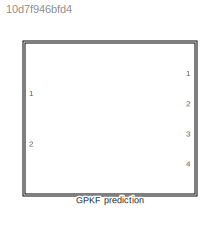
MODEL slx_10d7f946bfd4
KIND library
CONFIG AbsTol = auto
CONFIG EnableMultiTasking = off
CONFIG FixedStep = auto
CONFIG MaxStep = auto
CONFIG MinStep = auto
CONFIG RelTol = 1e-3
CONFIG SampleTimeConstraint = Unconstrained
CONFIG Solver = VariableStepAuto
CONFIG SolverName = VariableStepAuto
CONFIG StartTime = 0.0
CONFIG StopTime = 10.0
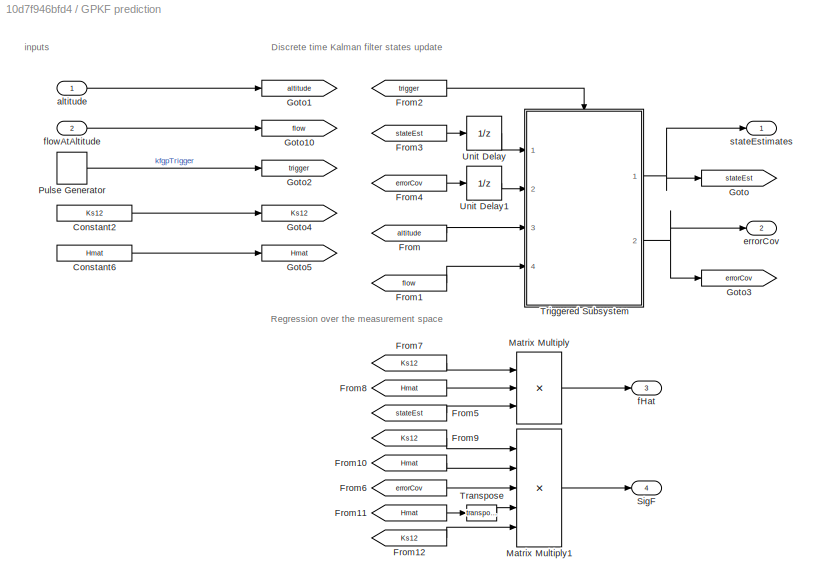
BLOCK [SubSystem] GPKF prediction
  Ports = [2, 4]
  RequestExecContextInheritance = off
BLOCK [Constant] GPKF prediction/Constant2
  Value = Ks12
  VectorParams1D = off
BLOCK [Constant] GPKF prediction/Constant6
  Value = Hmat
  VectorParams1D = off
BLOCK [From] GPKF prediction/From
  GotoTag = altitude
BLOCK [From] GPKF prediction/From1
  GotoTag = flow
BLOCK [From] GPKF prediction/From10
  GotoTag = Hmat
BLOCK [From] GPKF prediction/From11
  GotoTag = Hmat
BLOCK [From] GPKF prediction/From12
  GotoTag = Ks12
BLOCK [From] GPKF prediction/From2
  GotoTag = trigger
BLOCK [From] GPKF prediction/From3
  GotoTag = stateEst
BLOCK [From] GPKF prediction/From4
  GotoTag = errorCov
BLOCK [From] GPKF prediction/From5
  GotoTag = stateEst
BLOCK [From] GPKF prediction/From6
  GotoTag = errorCov
BLOCK [From] GPKF prediction/From7
  GotoTag = Ks12
BLOCK [From] GPKF prediction/From8
  GotoTag = Hmat
BLOCK [From] GPKF prediction/From9
  GotoTag = Ks12
BLOCK [Goto] GPKF prediction/Goto
  GotoTag = stateEst
BLOCK [Goto] GPKF prediction/Goto1
  GotoTag = altitude
BLOCK [Goto] GPKF prediction/Goto10
  GotoTag = flow
BLOCK [Goto] GPKF prediction/Goto2
  GotoTag = trigger
BLOCK [Goto] GPKF prediction/Goto3
  GotoTag = errorCov
BLOCK [Goto] GPKF prediction/Goto4
  GotoTag = Ks12
BLOCK [Goto] GPKF prediction/Goto5
  GotoTag = Hmat
BLOCK [Product] GPKF prediction/Matrix Multiply
  Inputs = 3
  Multiplication = Matrix(*)
  Ports = [3, 1]
BLOCK [Product] GPKF prediction/Matrix Multiply1
  Inputs = 5
  Multiplication = Matrix(*)
  Ports = [5, 1]
BLOCK [DiscretePulseGenerator] GPKF prediction/Pulse Generator
  Period = gpkfTimeStep
  Ports = [0, 1]
  PulseType = Time based
BLOCK [Outport] GPKF prediction/SigF
  Port = 4
BLOCK [Math] GPKF prediction/Transpose
  Operator = transpose
  Ports = [1, 1]
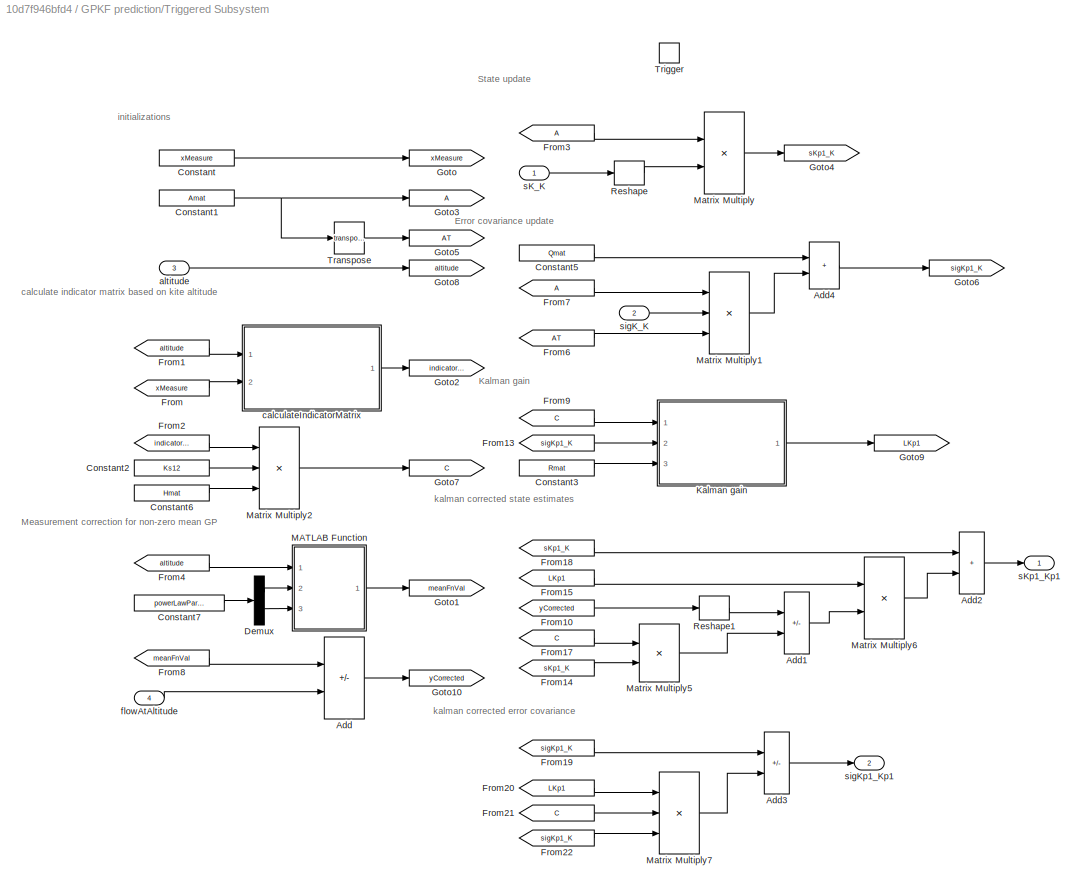
BLOCK [SubSystem] GPKF prediction/Triggered Subsystem
  Ports = [4, 2, 0, 1]
  RequestExecContextInheritance = off
  TreatAsAtomicUnit = on
BLOCK [Sum] GPKF prediction/Triggered Subsystem/Add
  IconShape = rectangular
  Inputs = +-
  Ports = [2, 1]
BLOCK [Sum] GPKF prediction/Triggered Subsystem/Add1
  IconShape = rectangular
  Inputs = +-
  Ports = [2, 1]
BLOCK [Sum] GPKF prediction/Triggered Subsystem/Add2
  IconShape = rectangular
  Ports = [2, 1]
BLOCK [Sum] GPKF prediction/Triggered Subsystem/Add3
  IconShape = rectangular
  Inputs = +-
  Ports = [2, 1]
BLOCK [Sum] GPKF prediction/Triggered Subsystem/Add4
  IconShape = rectangular
  Ports = [2, 1]
BLOCK [Constant] GPKF prediction/Triggered Subsystem/Constant
  Value = xMeasure
  VectorParams1D = off
BLOCK [Constant] GPKF prediction/Triggered Subsystem/Constant1
  Value = Amat
  VectorParams1D = off
BLOCK [Constant] GPKF prediction/Triggered Subsystem/Constant2
  Value = Ks12
  VectorParams1D = off
BLOCK [Constant] GPKF prediction/Triggered Subsystem/Constant3
  Value = Rmat
  VectorParams1D = off
BLOCK [Constant] GPKF prediction/Triggered Subsystem/Constant5
  Value = Qmat
  VectorParams1D = off
BLOCK [Constant] GPKF prediction/Triggered Subsystem/Constant6
  Value = Hmat
  VectorParams1D = off
BLOCK [Constant] GPKF prediction/Triggered Subsystem/Constant7
  Value = powerLawParams
BLOCK [Demux] GPKF prediction/Triggered Subsystem/Demux
  Outputs = 2
  Ports = [1, 2]
BLOCK [From] GPKF prediction/Triggered Subsystem/From
  GotoTag = xMeasure
BLOCK [From] GPKF prediction/Triggered Subsystem/From1
  GotoTag = altitude
BLOCK [From] GPKF prediction/Triggered Subsystem/From10
  GotoTag = yCorrected
BLOCK [From] GPKF prediction/Triggered Subsystem/From13
  GotoTag = sigKp1_K
BLOCK [From] GPKF prediction/Triggered Subsystem/From14
  GotoTag = sKp1_K
BLOCK [From] GPKF prediction/Triggered Subsystem/From15
  GotoTag = LKp1
BLOCK [From] GPKF prediction/Triggered Subsystem/From17
  GotoTag = C
BLOCK [From] GPKF prediction/Triggered Subsystem/From18
  GotoTag = sKp1_K
BLOCK [From] GPKF prediction/Triggered Subsystem/From19
  GotoTag = sigKp1_K
BLOCK [From] GPKF prediction/Triggered Subsystem/From2
  GotoTag = indicatorMat
BLOCK [From] GPKF prediction/Triggered Subsystem/From20
  GotoTag = LKp1
BLOCK [From] GPKF prediction/Triggered Subsystem/From21
  GotoTag = C
BLOCK [From] GPKF prediction/Triggered Subsystem/From22
  GotoTag = sigKp1_K
BLOCK [From] GPKF prediction/Triggered Subsystem/From3
BLOCK [From] GPKF prediction/Triggered Subsystem/From4
  GotoTag = altitude
BLOCK [From] GPKF prediction/Triggered Subsystem/From6
  GotoTag = AT
BLOCK [From] GPKF prediction/Triggered Subsystem/From7
BLOCK [From] GPKF prediction/Triggered Subsystem/From8
  GotoTag = meanFnVal
BLOCK [From] GPKF prediction/Triggered Subsystem/From9
  GotoTag = C
BLOCK [Goto] GPKF prediction/Triggered Subsystem/Goto
  GotoTag = xMeasure
BLOCK [Goto] GPKF prediction/Triggered Subsystem/Goto1
  GotoTag = meanFnVal
BLOCK [Goto] GPKF prediction/Triggered Subsystem/Goto10
  GotoTag = yCorrected
BLOCK [Goto] GPKF prediction/Triggered Subsystem/Goto2
  GotoTag = indicatorMat
BLOCK [Goto] GPKF prediction/Triggered Subsystem/Goto3
BLOCK [Goto] GPKF prediction/Triggered Subsystem/Goto4
  GotoTag = sKp1_K
BLOCK [Goto] GPKF prediction/Triggered Subsystem/Goto5
  GotoTag = AT
BLOCK [Goto] GPKF prediction/Triggered Subsystem/Goto6
  GotoTag = sigKp1_K
BLOCK [Goto] GPKF prediction/Triggered Subsystem/Goto7
  GotoTag = C
BLOCK [Goto] GPKF prediction/Triggered Subsystem/Goto8
  GotoTag = altitude
BLOCK [Goto] GPKF prediction/Triggered Subsystem/Goto9
  GotoTag = LKp1
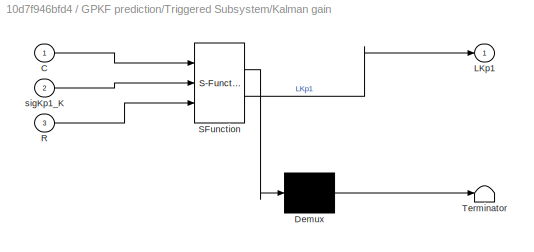
BLOCK [SubSystem] GPKF prediction/Triggered Subsystem/Kalman gain
  ErrorFcn = Stateflow.Translate.translate
  PermitHierarchicalResolution = ExplicitOnly
  Ports = [3, 1]
  RequestExecContextInheritance = off
  SFBlockType = MATLAB Function
  TreatAsAtomicUnit = on
BLOCK [Demux] GPKF prediction/Triggered Subsystem/Kalman gain/ Demux 
  Outputs = 1
  Ports = [1, 1]
BLOCK [S-Function] GPKF prediction/Triggered Subsystem/Kalman gain/ SFunction 
  EnableBusSupport = off
  FunctionName = sf_sfun
  PortCounts = [3 2]
  Ports = [3, 2]
  SFcnIsStateOwnerBlock = off
  SFunctionDeploymentMode = off
  Tag = Stateflow S-Function 1
BLOCK [Terminator] GPKF prediction/Triggered Subsystem/Kalman gain/ Terminator 
BLOCK [Inport] GPKF prediction/Triggered Subsystem/Kalman gain/C
BLOCK [Outport] GPKF prediction/Triggered Subsystem/Kalman gain/LKp1
BLOCK [Inport] GPKF prediction/Triggered Subsystem/Kalman gain/R
  Port = 3
BLOCK [Inport] GPKF prediction/Triggered Subsystem/Kalman gain/sigKp1_K
  Port = 2
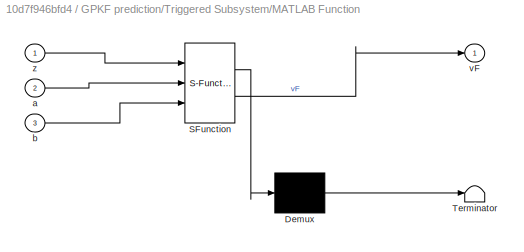
BLOCK [SubSystem] GPKF prediction/Triggered Subsystem/MATLAB Function
  ErrorFcn = Stateflow.Translate.translate
  PermitHierarchicalResolution = ExplicitOnly
  Ports = [3, 1]
  RequestExecContextInheritance = off
  SFBlockType = MATLAB Function
  TreatAsAtomicUnit = on
BLOCK [Demux] GPKF prediction/Triggered Subsystem/MATLAB Function/ Demux 
  Outputs = 1
  Ports = [1, 1]
BLOCK [S-Function] GPKF prediction/Triggered Subsystem/MATLAB Function/ SFunction 
  EnableBusSupport = off
  FunctionName = sf_sfun
  PortCounts = [3 2]
  Ports = [3, 2]
  SFcnIsStateOwnerBlock = off
  SFunctionDeploymentMode = off
  Tag = Stateflow S-Function 3
BLOCK [Terminator] GPKF prediction/Triggered Subsystem/MATLAB Function/ Terminator 
BLOCK [Inport] GPKF prediction/Triggered Subsystem/MATLAB Function/a
  Port = 2
BLOCK [Inport] GPKF prediction/Triggered Subsystem/MATLAB Function/b
  Port = 3
BLOCK [Outport] GPKF prediction/Triggered Subsystem/MATLAB Function/vF
BLOCK [Inport] GPKF prediction/Triggered Subsystem/MATLAB Function/z
BLOCK [Product] GPKF prediction/Triggered Subsystem/Matrix Multiply
  Multiplication = Matrix(*)
  Ports = [2, 1]
BLOCK [Product] GPKF prediction/Triggered Subsystem/Matrix Multiply1
  Inputs = 3
  Multiplication = Matrix(*)
  Ports = [3, 1]
BLOCK [Product] GPKF prediction/Triggered Subsystem/Matrix Multiply2
  Inputs = 3
  Multiplication = Matrix(*)
  Ports = [3, 1]
BLOCK [Product] GPKF prediction/Triggered Subsystem/Matrix Multiply5
  Multiplication = Matrix(*)
  Ports = [2, 1]
BLOCK [Product] GPKF prediction/Triggered Subsystem/Matrix Multiply6
  Multiplication = Matrix(*)
  Ports = [2, 1]
BLOCK [Product] GPKF prediction/Triggered Subsystem/Matrix Multiply7
  Inputs = 3
  Multiplication = Matrix(*)
  Ports = [3, 1]
BLOCK [Reshape] GPKF prediction/Triggered Subsystem/Reshape
  OutputDimensionality = Column vector (2-D)
  Ports = [1, 1]
BLOCK [Reshape] GPKF prediction/Triggered Subsystem/Reshape1
  OutputDimensionality = Column vector (2-D)
  Ports = [1, 1]
BLOCK [Math] GPKF prediction/Triggered Subsystem/Transpose
  Operator = transpose
  Ports = [1, 1]
BLOCK [TriggerPort] GPKF prediction/Triggered Subsystem/Trigger
  Ports = []
  StatesWhenEnabling = held
  VariantControl = Variant
BLOCK [Inport] GPKF prediction/Triggered Subsystem/altitude
  Port = 3
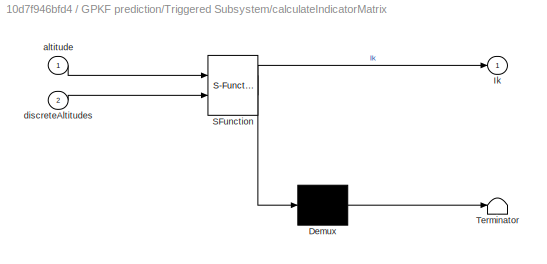
BLOCK [SubSystem] GPKF prediction/Triggered Subsystem/calculateIndicatorMatrix
  ErrorFcn = Stateflow.Translate.translate
  PermitHierarchicalResolution = ExplicitOnly
  Ports = [2, 1]
  RequestExecContextInheritance = off
  SFBlockType = MATLAB Function
  TreatAsAtomicUnit = on
BLOCK [Demux] GPKF prediction/Triggered Subsystem/calculateIndicatorMatrix/ Demux 
  Outputs = 1
  Ports = [1, 1]
BLOCK [S-Function] GPKF prediction/Triggered Subsystem/calculateIndicatorMatrix/ SFunction 
  EnableBusSupport = off
  FunctionName = sf_sfun
  PortCounts = [2 2]
  Ports = [2, 2]
  SFcnIsStateOwnerBlock = off
  SFunctionDeploymentMode = off
  Tag = Stateflow S-Function 2
BLOCK [Terminator] GPKF prediction/Triggered Subsystem/calculateIndicatorMatrix/ Terminator 
BLOCK [Outport] GPKF prediction/Triggered Subsystem/calculateIndicatorMatrix/Ik
BLOCK [Inport] GPKF prediction/Triggered Subsystem/calculateIndicatorMatrix/altitude
BLOCK [Inport] GPKF prediction/Triggered Subsystem/calculateIndicatorMatrix/discreteAltitudes
  Port = 2
BLOCK [Inport] GPKF prediction/Triggered Subsystem/flowAtAltitude
  Port = 4
BLOCK [Inport] GPKF prediction/Triggered Subsystem/sK_K
BLOCK [Outport] GPKF prediction/Triggered Subsystem/sKp1_Kp1
BLOCK [Inport] GPKF prediction/Triggered Subsystem/sigK_K
  Port = 2
BLOCK [Outport] GPKF prediction/Triggered Subsystem/sigKp1_Kp1
  Port = 2
BLOCK [UnitDelay] GPKF prediction/Unit Delay
  HasFrameUpgradeWarning = on
  InitialCondition = s0
  SampleTime = -1
BLOCK [UnitDelay] GPKF prediction/Unit Delay1
  HasFrameUpgradeWarning = on
  InitialCondition = sigma0
  SampleTime = -1
BLOCK [Inport] GPKF prediction/altitude
BLOCK [Outport] GPKF prediction/errorCov
  Port = 2
BLOCK [Outport] GPKF prediction/fHat
  Port = 3
BLOCK [Inport] GPKF prediction/flowAtAltitude
  Port = 2
BLOCK [Outport] GPKF prediction/stateEstimates
ANNOTATION GPKF prediction: Discrete time Kalman filter states update
ANNOTATION GPKF prediction: Regression over the measurement space
ANNOTATION GPKF prediction: inputs
ANNOTATION GPKF prediction/Triggered Subsystem: Error covariance update
ANNOTATION GPKF prediction/Triggered Subsystem: Kalman gain
ANNOTATION GPKF prediction/Triggered Subsystem: Measurement correction for non-zero mean GP
ANNOTATION GPKF prediction/Triggered Subsystem: State update
ANNOTATION GPKF prediction/Triggered Subsystem: calculate indicator matrix based on kite altitude
ANNOTATION GPKF prediction/Triggered Subsystem: initializations
ANNOTATION GPKF prediction/Triggered Subsystem: kalman corrected error covariance
ANNOTATION GPKF prediction/Triggered Subsystem: kalman corrected state estimates
LINE GPKF prediction/Constant2:1 -> GPKF prediction/Goto4:1
LINE GPKF prediction/Constant6:1 -> GPKF prediction/Goto5:1
LINE GPKF prediction/From10:1 -> GPKF prediction/Matrix Multiply1:2
LINE GPKF prediction/From11:1 -> GPKF prediction/Transpose:1
LINE GPKF prediction/From12:1 -> GPKF prediction/Matrix Multiply1:5
LINE GPKF prediction/From1:1 -> GPKF prediction/Triggered Subsystem:4
LINE GPKF prediction/From2:1 -> GPKF prediction/Triggered Subsystem:trigger
LINE GPKF prediction/From3:1 -> GPKF prediction/Unit Delay:1
LINE GPKF prediction/From4:1 -> GPKF prediction/Unit Delay1:1
LINE GPKF prediction/From5:1 -> GPKF prediction/Matrix Multiply:3
LINE GPKF prediction/From6:1 -> GPKF prediction/Matrix Multiply1:3
LINE GPKF prediction/From7:1 -> GPKF prediction/Matrix Multiply:1
LINE GPKF prediction/From8:1 -> GPKF prediction/Matrix Multiply:2
LINE GPKF prediction/From9:1 -> GPKF prediction/Matrix Multiply1:1
LINE GPKF prediction/From:1 -> GPKF prediction/Triggered Subsystem:3
LINE GPKF prediction/Matrix Multiply1:1 -> GPKF prediction/SigF:1
LINE GPKF prediction/Matrix Multiply:1 -> GPKF prediction/fHat:1
LINE GPKF prediction/Pulse Generator:1 -> GPKF prediction/Goto2:1
LINE GPKF prediction/Transpose:1 -> GPKF prediction/Matrix Multiply1:4
LINE GPKF prediction/Triggered Subsystem/Add1:1 -> GPKF prediction/Triggered Subsystem/Matrix Multiply6:2
LINE GPKF prediction/Triggered Subsystem/Add2:1 -> GPKF prediction/Triggered Subsystem/sKp1_Kp1:1
LINE GPKF prediction/Triggered Subsystem/Add3:1 -> GPKF prediction/Triggered Subsystem/sigKp1_Kp1:1
LINE GPKF prediction/Triggered Subsystem/Add4:1 -> GPKF prediction/Triggered Subsystem/Goto6:1
LINE GPKF prediction/Triggered Subsystem/Add:1 -> GPKF prediction/Triggered Subsystem/Goto10:1
NET GPKF prediction/Triggered Subsystem/Constant1:1 -> GPKF prediction/Triggered Subsystem/Goto3:1, GPKF prediction/Triggered Subsystem/Transpose:1
LINE GPKF prediction/Triggered Subsystem/Constant2:1 -> GPKF prediction/Triggered Subsystem/Matrix Multiply2:2
LINE GPKF prediction/Triggered Subsystem/Constant3:1 -> GPKF prediction/Triggered Subsystem/Kalman gain:3
LINE GPKF prediction/Triggered Subsystem/Constant5:1 -> GPKF prediction/Triggered Subsystem/Add4:1
LINE GPKF prediction/Triggered Subsystem/Constant6:1 -> GPKF prediction/Triggered Subsystem/Matrix Multiply2:3
LINE GPKF prediction/Triggered Subsystem/Constant7:1 -> GPKF prediction/Triggered Subsystem/Demux:1
LINE GPKF prediction/Triggered Subsystem/Constant:1 -> GPKF prediction/Triggered Subsystem/Goto:1
LINE GPKF prediction/Triggered Subsystem/Demux:1 -> GPKF prediction/Triggered Subsystem/MATLAB Function:2
LINE GPKF prediction/Triggered Subsystem/Demux:2 -> GPKF prediction/Triggered Subsystem/MATLAB Function:3
LINE GPKF prediction/Triggered Subsystem/From10:1 -> GPKF prediction/Triggered Subsystem/Reshape1:1
LINE GPKF prediction/Triggered Subsystem/From13:1 -> GPKF prediction/Triggered Subsystem/Kalman gain:2
LINE GPKF prediction/Triggered Subsystem/From14:1 -> GPKF prediction/Triggered Subsystem/Matrix Multiply5:2
LINE GPKF prediction/Triggered Subsystem/From15:1 -> GPKF prediction/Triggered Subsystem/Matrix Multiply6:1
LINE GPKF prediction/Triggered Subsystem/From17:1 -> GPKF prediction/Triggered Subsystem/Matrix Multiply5:1
LINE GPKF prediction/Triggered Subsystem/From18:1 -> GPKF prediction/Triggered Subsystem/Add2:1
LINE GPKF prediction/Triggered Subsystem/From19:1 -> GPKF prediction/Triggered Subsystem/Add3:1
LINE GPKF prediction/Triggered Subsystem/From1:1 -> GPKF prediction/Triggered Subsystem/calculateIndicatorMatrix:1
LINE GPKF prediction/Triggered Subsystem/From20:1 -> GPKF prediction/Triggered Subsystem/Matrix Multiply7:1
LINE GPKF prediction/Triggered Subsystem/From21:1 -> GPKF prediction/Triggered Subsystem/Matrix Multiply7:2
LINE GPKF prediction/Triggered Subsystem/From22:1 -> GPKF prediction/Triggered Subsystem/Matrix Multiply7:3
LINE GPKF prediction/Triggered Subsystem/From2:1 -> GPKF prediction/Triggered Subsystem/Matrix Multiply2:1
LINE GPKF prediction/Triggered Subsystem/From3:1 -> GPKF prediction/Triggered Subsystem/Matrix Multiply:1
LINE GPKF prediction/Triggered Subsystem/From4:1 -> GPKF prediction/Triggered Subsystem/MATLAB Function:1
LINE GPKF prediction/Triggered Subsystem/From6:1 -> GPKF prediction/Triggered Subsystem/Matrix Multiply1:3
LINE GPKF prediction/Triggered Subsystem/From7:1 -> GPKF prediction/Triggered Subsystem/Matrix Multiply1:1
LINE GPKF prediction/Triggered Subsystem/From8:1 -> GPKF prediction/Triggered Subsystem/Add:1
LINE GPKF prediction/Triggered Subsystem/From9:1 -> GPKF prediction/Triggered Subsystem/Kalman gain:1
LINE GPKF prediction/Triggered Subsystem/From:1 -> GPKF prediction/Triggered Subsystem/calculateIndicatorMatrix:2
LINE GPKF prediction/Triggered Subsystem/Kalman gain:1 -> GPKF prediction/Triggered Subsystem/Goto9:1
LINE GPKF prediction/Triggered Subsystem/MATLAB Function:1 -> GPKF prediction/Triggered Subsystem/Goto1:1
LINE GPKF prediction/Triggered Subsystem/Matrix Multiply1:1 -> GPKF prediction/Triggered Subsystem/Add4:2
LINE GPKF prediction/Triggered Subsystem/Matrix Multiply2:1 -> GPKF prediction/Triggered Subsystem/Goto7:1
LINE GPKF prediction/Triggered Subsystem/Matrix Multiply5:1 -> GPKF prediction/Triggered Subsystem/Add1:2
LINE GPKF prediction/Triggered Subsystem/Matrix Multiply6:1 -> GPKF prediction/Triggered Subsystem/Add2:2
LINE GPKF prediction/Triggered Subsystem/Matrix Multiply7:1 -> GPKF prediction/Triggered Subsystem/Add3:2
LINE GPKF prediction/Triggered Subsystem/Matrix Multiply:1 -> GPKF prediction/Triggered Subsystem/Goto4:1
LINE GPKF prediction/Triggered Subsystem/Reshape1:1 -> GPKF prediction/Triggered Subsystem/Add1:1
LINE GPKF prediction/Triggered Subsystem/Reshape:1 -> GPKF prediction/Triggered Subsystem/Matrix Multiply:2
LINE GPKF prediction/Triggered Subsystem/Transpose:1 -> GPKF prediction/Triggered Subsystem/Goto5:1
LINE GPKF prediction/Triggered Subsystem/altitude:1 -> GPKF prediction/Triggered Subsystem/Goto8:1
LINE GPKF prediction/Triggered Subsystem/calculateIndicatorMatrix:1 -> GPKF prediction/Triggered Subsystem/Goto2:1
LINE GPKF prediction/Triggered Subsystem/flowAtAltitude:1 -> GPKF prediction/Triggered Subsystem/Add:2
LINE GPKF prediction/Triggered Subsystem/sK_K:1 -> GPKF prediction/Triggered Subsystem/Reshape:1
LINE GPKF prediction/Triggered Subsystem/sigK_K:1 -> GPKF prediction/Triggered Subsystem/Matrix Multiply1:2
NET GPKF prediction/Triggered Subsystem:1 -> GPKF prediction/Goto:1, GPKF prediction/stateEstimates:1
NET GPKF prediction/Triggered Subsystem:2 -> GPKF prediction/Goto3:1, GPKF prediction/errorCov:1
LINE GPKF prediction/Unit Delay1:1 -> GPKF prediction/Triggered Subsystem:2
LINE GPKF prediction/Unit Delay:1 -> GPKF prediction/Triggered Subsystem:1
LINE GPKF prediction/altitude:1 -> GPKF prediction/Goto1:1
LINE GPKF prediction/flowAtAltitude:1 -> GPKF prediction/Goto10:1
note: NET lines group one-source signal fan-out (src -> all destinations, sorted); 1:1 wires keep LINE
CHART GPKF prediction/Triggered
Subsystem/calculateIndicatorMatrix states=1 transitions=1
  STATE_LABEL 'eML_blk_kernel()'
  STATE_LABEL 'SCRIPT:\nfunction Ik = fcn(altitude,discreteAltitudes)\nIk = calculateIndicatorMat(altitude,discreteAltitudes);\nend\n'
CHART GPKF prediction/Triggered
Subsystem/MATLAB Function states=1 transitions=1
  STATE_LABEL 'eML_blk_kernel()'
  STATE_LABEL 'SCRIPT:\nfunction vF = fcn(z,a,b)\n\nvF = powerLaw(z,a,b);\n\nend'
CHART GPKF prediction/Triggered
Subsystem/Kalman gain states=1 transitions=1
  STATE_LABEL 'eML_blk_kernel()'
  STATE_LABEL 'SCRIPT:\nfunction LKp1 = fcn(C,sigKp1_K,R)\n\nLKp1 = calculateKalmanGain(C,sigKp1_K,R);\n\nend\n'
CHART  states=0 transitions=0
CHART  states=0 transitions=0
CHART  states=0 transitions=0
